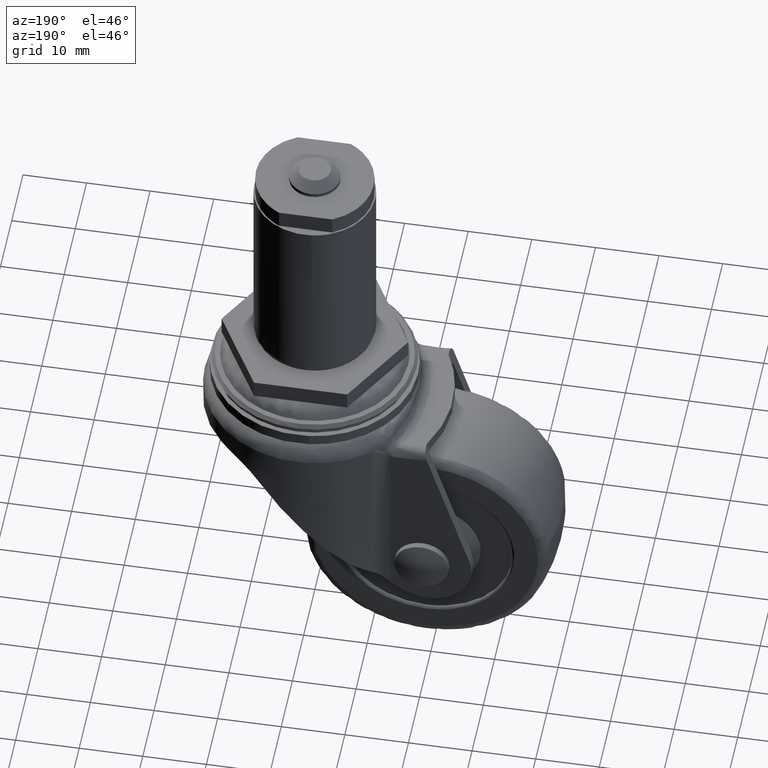
[diagram: clean part render]
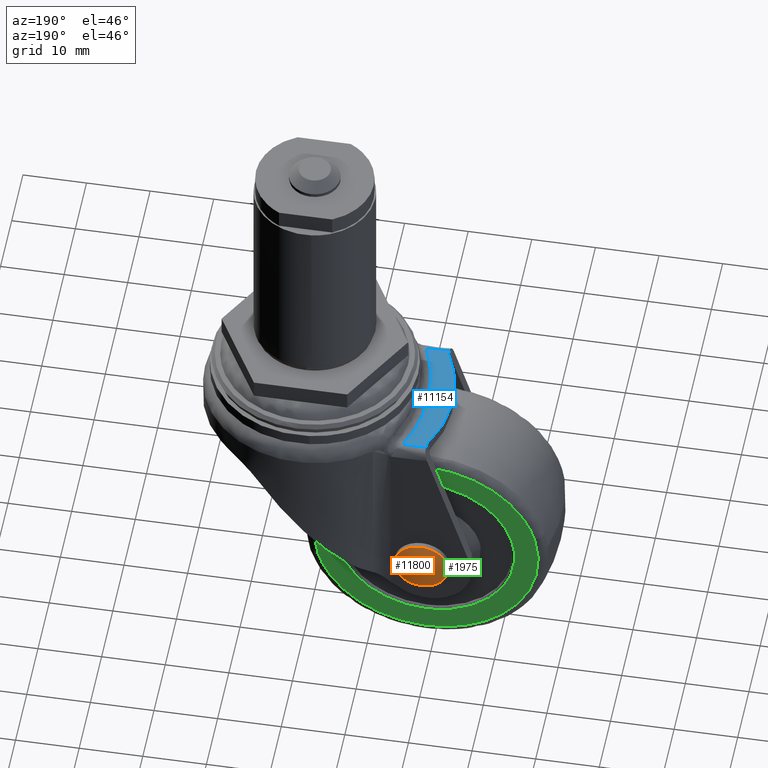
[diagram: same view with three faces highlighted in distinct colors, each labeled with its STEP entity id]
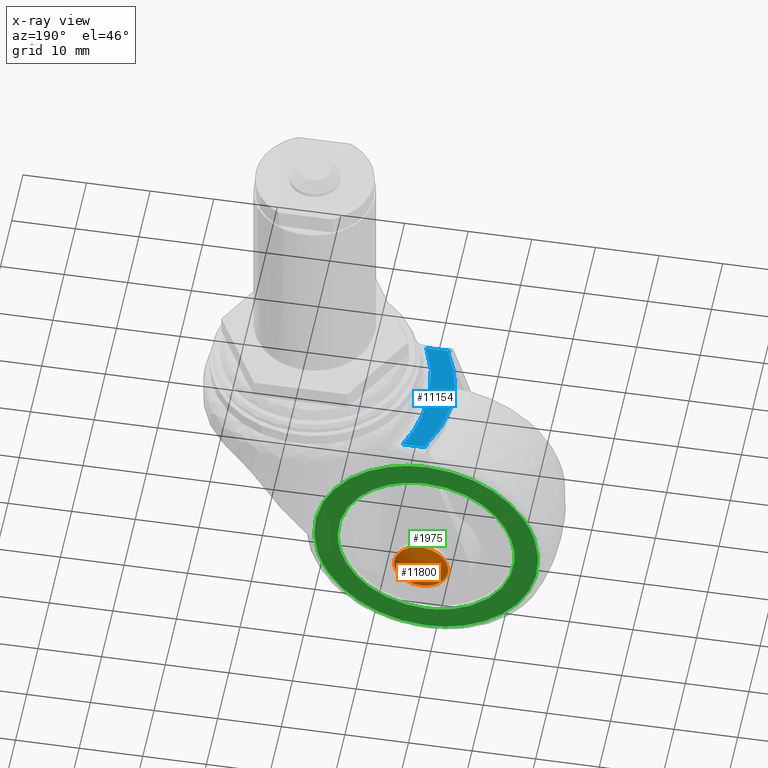
[diagram: x-ray of the same camera — body ghosted, the three highlighted faces saturated]
A machine part, auxiliary view with three faces highlighted in distinct colors.
The next image is the same camera in x-ray (body ghosted, the three faces saturated) — at least one of them is partly hidden behind the body in this view.
Their STEP definitions:

[orange] entity #11800 — the highlighted face is a freeform B-spline surface patch.
#11234=CARTESIAN_POINT('',(-14.779709513381951,12.933474000000000,-35.498349499112209));
#11235=VERTEX_POINT('',#11234);
#11236=CARTESIAN_POINT('',(-19.0,12.933474000000000,-40.249995000000197));
#11237=VERTEX_POINT('',#11236);
#11238=CARTESIAN_POINT('',(-14.779709513381951,12.933474000000000,-35.498349499112209));
#11239=CARTESIAN_POINT('',(-14.750000000000004,12.933473999999995,-35.748292487844793));
#11240=CARTESIAN_POINT('',(-14.750000000000000,12.933474000000000,-35.999995000000197));
#11241=CARTESIAN_POINT('',(-14.750000000000005,12.933474000000002,-40.249995000000204));
#11242=CARTESIAN_POINT('',(-19.0,12.933474000000000,-40.249995000000197));
#11250=(BOUNDED_CURVE()B_SPLINE_CURVE(2,(#11238,#11239,#11240,#11241,#11242),.UNSPECIFIED.,.F.,.U.)B_SPLINE_CURVE_WITH_KNOTS((3,2,3),(0.229562473227576,0.250000000000000,0.500000000000000),.UNSPECIFIED.)CURVE()GEOMETRIC_REPRESENTATION_ITEM()RATIONAL_B_SPLINE_CURVE((0.956026753623260,0.976055947996154,1.0,0.707106781186548,1.0))REPRESENTATION_ITEM(''));
#11251=EDGE_CURVE('',#11235,#11237,#11250,.T.);
#11292=CARTESIAN_POINT('',(-23.242072893281740,12.933474000000000,-36.259451293206340));
#11293=VERTEX_POINT('',#11292);
#11299=CARTESIAN_POINT('',(-19.0,12.933474000000000,-40.249995000000197));
#11300=CARTESIAN_POINT('',(-22.998000784003612,12.933474000000002,-40.249995000000219));
#11301=CARTESIAN_POINT('',(-23.242072893281748,12.933474000000000,-36.259451293206347));
#11309=(BOUNDED_CURVE()B_SPLINE_CURVE(2,(#11299,#11300,#11301),.UNSPECIFIED.,.F.,.U.)B_SPLINE_CURVE_WITH_KNOTS((3,3),(0.500000000000000,0.739332962227081),.UNSPECIFIED.)CURVE()GEOMETRIC_REPRESENTATION_ITEM()RATIONAL_B_SPLINE_CURVE((1.0,0.719603993300607,0.976072041641296))REPRESENTATION_ITEM(''));
#11310=EDGE_CURVE('',#11237,#11293,#11309,.T.);
#11333=CARTESIAN_POINT('',(-19.0,12.933474000000000,-31.749995000000201));
#11334=VERTEX_POINT('',#11333);
#11335=CARTESIAN_POINT('',(-19.0,12.933474000000000,-31.749995000000201));
#11336=CARTESIAN_POINT('',(-15.225258271186082,12.933474000000004,-31.749995000000208));
#11337=CARTESIAN_POINT('',(-14.779709513381951,12.933474000000000,-35.498349499112209));
#11345=(BOUNDED_CURVE()B_SPLINE_CURVE(2,(#11335,#11336,#11337),.UNSPECIFIED.,.F.,.U.)B_SPLINE_CURVE_WITH_KNOTS((3,3),(0.0,0.229562473227576),.UNSPECIFIED.)CURVE()GEOMETRIC_REPRESENTATION_ITEM()RATIONAL_B_SPLINE_CURVE((1.0,0.731050833190393,0.956026753623260))REPRESENTATION_ITEM(''));
#11346=EDGE_CURVE('',#11334,#11235,#11345,.T.);
#11348=CARTESIAN_POINT('',(-23.242072893281748,12.933474000000004,-36.259451293206340));
#11349=CARTESIAN_POINT('',(-23.249999999999996,12.933474000000000,-36.129844244202715));
#11350=CARTESIAN_POINT('',(-23.250000000000000,12.933474000000000,-35.999995000000197));
#11351=CARTESIAN_POINT('',(-23.250000000000000,12.933474000000002,-31.749995000000197));
#11352=CARTESIAN_POINT('',(-19.0,12.933474000000000,-31.749995000000201));
#11360=(BOUNDED_CURVE()B_SPLINE_CURVE(2,(#11348,#11349,#11350,#11351,#11352),.UNSPECIFIED.,.F.,.U.)B_SPLINE_CURVE_WITH_KNOTS((3,2,3),(0.739332962227081,0.750000000000000,1.0),.UNSPECIFIED.)CURVE()GEOMETRIC_REPRESENTATION_ITEM()RATIONAL_B_SPLINE_CURVE((0.976072041641296,0.987502787885941,1.0,0.707106781186548,1.0))REPRESENTATION_ITEM(''));
#11361=EDGE_CURVE('',#11293,#11334,#11360,.T.);
#11770=CARTESIAN_POINT('',(-23.311764594617248,11.619564527839158,-31.688134230007108));
#11771=CARTESIAN_POINT('',(-21.308536887973421,12.725549818831567,-31.382818238652415));
#11772=CARTESIAN_POINT('',(-16.691450116791806,12.725549818831567,-31.382818238652415));
#11773=CARTESIAN_POINT('',(-14.688214343589566,11.619552899551007,-31.688137440088084));
#11774=CARTESIAN_POINT('',(-23.617088360619878,12.725602651942578,-33.691399326827110));
#11775=CARTESIAN_POINT('',(-21.484465801078279,14.000158000000001,-33.515473782067197));
#11776=CARTESIAN_POINT('',(-16.515520213346459,14.000158000000001,-33.515473782067197));
#11777=CARTESIAN_POINT('',(-14.382889329567332,12.725589318507513,-33.691401167227241));
#11778=CARTESIAN_POINT('',(-23.617088360619878,12.725602651942578,-38.308590927982600));
#11779=CARTESIAN_POINT('',(-21.484465801078279,14.000158000000001,-38.484516492160182));
#11780=CARTESIAN_POINT('',(-16.515520213346459,14.000158000000001,-38.484516492160182));
#11781=CARTESIAN_POINT('',(-14.382889329567332,12.725589318507513,-38.308589087582284));
#11782=CARTESIAN_POINT('',(-23.311764531674612,11.619564299828884,-40.311856182967290));
#11783=CARTESIAN_POINT('',(-21.308536851887446,12.725549557388009,-40.617172198791501));
#11784=CARTESIAN_POINT('',(-16.691450152877991,12.725549557388009,-40.617172198791501));
#11785=CARTESIAN_POINT('',(-14.688214406532467,11.619552671541070,-40.311852972886072));
#11793=(BOUNDED_SURFACE()B_SPLINE_SURFACE(2,2,((#11770,#11774,#11778,#11782),(#11771,#11775,#11779,#11783),(#11772,#11776,#11780,#11784),(#11773,#11777,#11781,#11785)),.UNSPECIFIED.,.F.,.F.,.U.)B_SPLINE_SURFACE_WITH_KNOTS((3,1,3),(3,1,3),(0.0,4.786549072823097,9.573125090127471),(0.0,4.786655838428195,9.573312205179553),.UNSPECIFIED.)GEOMETRIC_REPRESENTATION_ITEM()RATIONAL_B_SPLINE_SURFACE(((1.152412543198604,1.076204571811452,1.076204571811452,1.152412560021388),(1.076207971387152,1.0,1.0,1.076207988209936),(1.076207971387152,1.0,1.0,1.076207988209936),(1.152413401143819,1.076205429756667,1.076205429756667,1.152413417966603)))REPRESENTATION_ITEM('')SURFACE());
#11794=ORIENTED_EDGE('',*,*,#11346,.T.);
#11795=ORIENTED_EDGE('',*,*,#11251,.T.);
#11796=ORIENTED_EDGE('',*,*,#11310,.T.);
#11797=ORIENTED_EDGE('',*,*,#11361,.T.);
#11798=EDGE_LOOP('',(#11794,#11795,#11796,#11797));
#11799=FACE_OUTER_BOUND('',#11798,.T.);
#11800=ADVANCED_FACE('',(#11799),#11793,.T.);

[blue] entity #11154 — the highlighted face is a freeform B-spline surface patch.
#7867=CARTESIAN_POINT('',(-19.292232305463649,-10.109999999999999,-11.850971000000021));
#7868=VERTEX_POINT('',#7867);
#7874=CARTESIAN_POINT('',(-19.431056740253052,-9.481630320366211,-11.850971000000101));
#7875=VERTEX_POINT('',#7874);
#7876=CARTESIAN_POINT('',(-19.431056740253052,-9.481630320366211,-11.850971000000101));
#7877=CARTESIAN_POINT('',(-19.381612533223560,-9.579394663803630,-11.850971000000101));
#7878=CARTESIAN_POINT('',(-19.345980952335680,-9.680969222735419,-11.850971000000021));
#7879=CARTESIAN_POINT('',(-19.311267497481030,-9.838498815483337,-11.850971000000021));
#7880=CARTESIAN_POINT('',(-19.302864987933269,-9.891882750238075,-11.850971000000021));
#7881=CARTESIAN_POINT('',(-19.292568292857801,-10.000445942140940,-11.850971000000021));
#7882=CARTESIAN_POINT('',(-19.290736259119360,-10.055287622268271,-11.850971000000021));
#7883=CARTESIAN_POINT('',(-19.292232305463649,-10.109999999999999,-11.850971000000021));
#7884=B_SPLINE_CURVE_WITH_KNOTS('',3,(#7876,#7877,#7878,#7879,#7880,#7881,#7882,#7883),.UNSPECIFIED.,.F.,.U.,(4,2,2,4),(0.0,0.500000000000000,0.750000000000000,1.0),.UNSPECIFIED.);
#7885=EDGE_CURVE('',#7875,#7868,#7884,.T.);
#7964=CARTESIAN_POINT('',(-19.431056620267199,9.481629642205599,-11.850971000000101));
#7965=VERTEX_POINT('',#7964);
#7979=CARTESIAN_POINT('',(-19.292231969452349,10.109999999999999,-11.850971000000021));
#7980=VERTEX_POINT('',#7979);
#7981=CARTESIAN_POINT('',(-19.292231969452349,10.109999999999999,-11.850971000000021));
#7982=CARTESIAN_POINT('',(-19.289241003276299,10.000619849192359,-11.850971000000021));
#7983=CARTESIAN_POINT('',(-19.299369476600649,9.893420179954010,-11.850971000000021));
#7984=CARTESIAN_POINT('',(-19.333795329619090,9.735817269510349,-11.850971000000021));
#7985=CARTESIAN_POINT('',(-19.348510210501431,9.683821394561344,-11.850971000000021));
#7986=CARTESIAN_POINT('',(-19.384833896725709,9.580975431053345,-11.850971000000021));
#7987=CARTESIAN_POINT('',(-19.406348376458659,9.530484408065108,-11.850971000000021));
#7988=CARTESIAN_POINT('',(-19.431056620267199,9.481629642205599,-11.850971000000101));
#7989=B_SPLINE_CURVE_WITH_KNOTS('',3,(#7981,#7982,#7983,#7984,#7985,#7986,#7987,#7988),.UNSPECIFIED.,.F.,.U.,(4,2,2,4),(0.0,0.499999999999996,0.749999999999998,1.0),.UNSPECIFIED.);
#7990=EDGE_CURVE('',#7980,#7965,#7989,.T.);
#8015=CARTESIAN_POINT('',(-19.431056620267210,9.481629642205601,-11.850971000000101));
#8016=CARTESIAN_POINT('',(-24.226380482921854,-0.000000308738951,-11.850971000000099));
#8017=CARTESIAN_POINT('',(-19.431056740253059,-9.481630320366204,-11.850971000000101));
#8025=(BOUNDED_CURVE()B_SPLINE_CURVE(2,(#8015,#8016,#8017),.UNSPECIFIED.,.F.,.U.)CURVE()GEOMETRIC_REPRESENTATION_ITEM()QUASI_UNIFORM_CURVE()RATIONAL_B_SPLINE_CURVE((1.0,0.892365731503941,1.0))REPRESENTATION_ITEM(''));
#8026=EDGE_CURVE('',#7965,#7875,#8025,.T.);
#9682=CARTESIAN_POINT('',(-15.662409885287699,10.500123000000000,-11.850971000000021));
#9683=VERTEX_POINT('',#9682);
#9748=CARTESIAN_POINT('',(-15.662409885287699,-10.500123000000000,-11.850971000000021));
#9749=VERTEX_POINT('',#9748);
#9779=CARTESIAN_POINT('',(-15.662409885287669,-10.500122999999990,-11.850971000000021));
#9780=CARTESIAN_POINT('',(-20.293694679041458,-1.734723E-015,-11.850971000000017));
#9781=CARTESIAN_POINT('',(-15.662409885287669,10.500122999999981,-11.850971000000021));
#9789=(BOUNDED_CURVE()B_SPLINE_CURVE(2,(#9779,#9780,#9781),.UNSPECIFIED.,.F.,.U.)CURVE()GEOMETRIC_REPRESENTATION_ITEM()QUASI_UNIFORM_CURVE()RATIONAL_B_SPLINE_CURVE((1.0,0.914953916740721,1.0))REPRESENTATION_ITEM(''));
#9790=EDGE_CURVE('',#9749,#9683,#9789,.T.);
#9947=CARTESIAN_POINT('',(-19.292231969452349,10.500123000000000,-11.850971000000021));
#9948=VERTEX_POINT('',#9947);
#9964=CARTESIAN_POINT('',(-15.662409885287699,10.500123000000000,-11.850971000000021));
#9965=CARTESIAN_POINT('',(-19.292231969452349,10.500123000000000,-11.850971000000021));
#9966=QUASI_UNIFORM_CURVE('',1,(#9964,#9965),.UNSPECIFIED.,.F.,.U.);
#9967=EDGE_CURVE('',#9683,#9948,#9966,.T.);
#9994=CARTESIAN_POINT('',(-19.292232305463649,-10.500123000000000,-11.850971000000021));
#9995=VERTEX_POINT('',#9994);
#10017=CARTESIAN_POINT('',(-19.292232305463649,-10.500123000000000,-11.850971000000021));
#10018=CARTESIAN_POINT('',(-15.662409885287699,-10.500123000000000,-11.850971000000021));
#10019=QUASI_UNIFORM_CURVE('',1,(#10017,#10018),.UNSPECIFIED.,.F.,.U.);
#10020=EDGE_CURVE('',#9995,#9749,#10019,.T.);
#10997=CARTESIAN_POINT('',(-19.292231969452349,10.109999999999999,-11.850971000000021));
#10998=CARTESIAN_POINT('',(-19.292231969452349,10.500123000000000,-11.850971000000021));
#10999=QUASI_UNIFORM_CURVE('',1,(#10997,#10998),.UNSPECIFIED.,.F.,.U.);
#11000=EDGE_CURVE('',#7980,#9948,#10999,.T.);
#11027=CARTESIAN_POINT('',(-19.292232305463649,-10.500123000000000,-11.850971000000021));
#11028=CARTESIAN_POINT('',(-19.292232305463649,-10.109999999999999,-11.850971000000021));
#11029=QUASI_UNIFORM_CURVE('',1,(#11027,#11028),.UNSPECIFIED.,.F.,.U.);
#11030=EDGE_CURVE('',#9995,#7868,#11029,.T.);
#11139=CARTESIAN_POINT('',(-21.993539933204090,-11.549085246997450,-11.850971000000021));
#11140=CARTESIAN_POINT('',(-15.361214491201920,-11.549085246997450,-11.850971000000021));
#11141=CARTESIAN_POINT('',(-21.993539933204090,11.549085810267940,-11.850971000000021));
#11142=CARTESIAN_POINT('',(-15.361214491201920,11.549085810267940,-11.850971000000021));
#11143=B_SPLINE_SURFACE_WITH_KNOTS('',1,1,((#11139,#11141),(#11140,#11142)),.UNSPECIFIED.,.F.,.F.,.U.,(2,2),(2,2),(0.0,6.632325442002168),(0.0,23.098171057265390),.UNSPECIFIED.);
#11144=ORIENTED_EDGE('',*,*,#11000,.F.);
#11145=ORIENTED_EDGE('',*,*,#7990,.T.);
#11146=ORIENTED_EDGE('',*,*,#8026,.T.);
#11147=ORIENTED_EDGE('',*,*,#7885,.T.);
#11148=ORIENTED_EDGE('',*,*,#11030,.F.);
#11149=ORIENTED_EDGE('',*,*,#10020,.T.);
#11150=ORIENTED_EDGE('',*,*,#9790,.T.);
#11151=ORIENTED_EDGE('',*,*,#9967,.T.);
#11152=EDGE_LOOP('',(#11144,#11145,#11146,#11147,#11148,#11149,#11150,#11151));
#11153=FACE_OUTER_BOUND('',#11152,.T.);
#11154=ADVANCED_FACE('',(#11153),#11143,.T.);

[green] entity #1975 — the highlighted face is a freeform B-spline surface patch.
#1451=CARTESIAN_POINT('',(-1.983238121027201,8.499999999999988,-40.597842754987070));
#1452=VERTEX_POINT('',#1451);
#1466=CARTESIAN_POINT('',(-19.0,8.500000000000000,-18.373016000000302));
#1467=VERTEX_POINT('',#1466);
#1468=CARTESIAN_POINT('',(-1.983238121027201,8.499999999999988,-40.597842754987077));
#1469=CARTESIAN_POINT('',(-1.373021000000099,8.500000000000000,-38.339412273016222));
#1470=CARTESIAN_POINT('',(-1.373021000000099,8.500000000000000,-35.999995000000197));
#1471=CARTESIAN_POINT('',(-1.373021000000099,8.500000000000002,-18.373016000000302));
#1472=CARTESIAN_POINT('',(-19.0,8.500000000000000,-18.373016000000302));
#1480=(BOUNDED_CURVE()B_SPLINE_CURVE(2,(#1468,#1469,#1470,#1471,#1472),.UNSPECIFIED.,.F.,.U.)B_SPLINE_CURVE_WITH_KNOTS((3,2,3),(0.205522207668531,0.250000000000000,0.500000000000000),.UNSPECIFIED.)CURVE()GEOMETRIC_REPRESENTATION_ITEM()RATIONAL_B_SPLINE_CURVE((0.914323587272429,0.947891024953280,1.0,0.707106781186548,1.0))REPRESENTATION_ITEM(''));
#1481=EDGE_CURVE('',#1452,#1467,#1480,.T.);
#1483=CARTESIAN_POINT('',(-36.016761878972801,8.499999999999988,-31.402147245013339));
#1484=VERTEX_POINT('',#1483);
#1485=CARTESIAN_POINT('',(-19.0,8.500000000000000,-18.373016000000302));
#1486=CARTESIAN_POINT('',(-32.496352863983475,8.500000000000000,-18.373016000000302));
#1487=CARTESIAN_POINT('',(-36.016761878972801,8.499999999999988,-31.402147245013342));
#1495=(BOUNDED_CURVE()B_SPLINE_CURVE(2,(#1485,#1486,#1487),.UNSPECIFIED.,.F.,.U.)B_SPLINE_CURVE_WITH_KNOTS((3,3),(0.500000000000000,0.705522207668531),.UNSPECIFIED.)CURVE()GEOMETRIC_REPRESENTATION_ITEM()RATIONAL_B_SPLINE_CURVE((1.0,0.759215756233268,0.914323587272429))REPRESENTATION_ITEM(''));
#1496=EDGE_CURVE('',#1467,#1484,#1495,.T.);
#1598=CARTESIAN_POINT('',(-19.0,8.500000000000000,-53.626974000000097));
#1599=VERTEX_POINT('',#1598);
#1600=CARTESIAN_POINT('',(-36.016761878972801,8.499999999999988,-31.402147245013342));
#1601=CARTESIAN_POINT('',(-36.626978999999906,8.500000000000000,-33.660577726984201));
#1602=CARTESIAN_POINT('',(-36.626978999999899,8.500000000000000,-35.999995000000197));
#1603=CARTESIAN_POINT('',(-36.626978999999899,8.500000000000002,-53.626974000000104));
#1604=CARTESIAN_POINT('',(-19.0,8.500000000000000,-53.626974000000097));
#1612=(BOUNDED_CURVE()B_SPLINE_CURVE(2,(#1600,#1601,#1602,#1603,#1604),.UNSPECIFIED.,.F.,.U.)B_SPLINE_CURVE_WITH_KNOTS((3,2,3),(0.705522207668532,0.750000000000000,1.0),.UNSPECIFIED.)CURVE()GEOMETRIC_REPRESENTATION_ITEM()RATIONAL_B_SPLINE_CURVE((0.914323587272429,0.947891024953280,1.0,0.707106781186548,1.0))REPRESENTATION_ITEM(''));
#1613=EDGE_CURVE('',#1484,#1599,#1612,.T.);
#1615=CARTESIAN_POINT('',(-19.0,8.500000000000000,-53.626974000000097));
#1616=CARTESIAN_POINT('',(-5.503647136016519,8.500000000000000,-53.626974000000111));
#1617=CARTESIAN_POINT('',(-1.983238121027201,8.499999999999988,-40.597842754987077));
#1625=(BOUNDED_CURVE()B_SPLINE_CURVE(2,(#1615,#1616,#1617),.UNSPECIFIED.,.F.,.U.)B_SPLINE_CURVE_WITH_KNOTS((3,3),(0.0,0.205522207668531),.UNSPECIFIED.)CURVE()GEOMETRIC_REPRESENTATION_ITEM()RATIONAL_B_SPLINE_CURVE((1.0,0.759215756233268,0.914323587272429))REPRESENTATION_ITEM(''));
#1626=EDGE_CURVE('',#1599,#1452,#1625,.T.);
#1655=CARTESIAN_POINT('',(-32.866176817240358,8.499999999999998,-36.969288172448159));
#1656=VERTEX_POINT('',#1655);
#1657=CARTESIAN_POINT('',(-19.0,8.500000000000000,-49.900008999999997));
#1658=VERTEX_POINT('',#1657);
#1659=CARTESIAN_POINT('',(-32.866176817240351,8.499999999999998,-36.969288172448159));
#1660=CARTESIAN_POINT('',(-31.962275231893891,8.500000000000000,-49.900009000000004));
#1661=CARTESIAN_POINT('',(-19.0,8.500000000000000,-49.900008999999997));
#1669=(BOUNDED_CURVE()B_SPLINE_CURVE(2,(#1659,#1660,#1661),.UNSPECIFIED.,.F.,.U.)B_SPLINE_CURVE_WITH_KNOTS((3,3),(0.762166313473175,1.0),.UNSPECIFIED.)CURVE()GEOMETRIC_REPRESENTATION_ITEM()RATIONAL_B_SPLINE_CURVE((0.972879876369492,0.721360504043554,1.0))REPRESENTATION_ITEM(''));
#1670=EDGE_CURVE('',#1656,#1658,#1669,.T.);
#1688=CARTESIAN_POINT('',(-5.101083500026209,8.499999999999998,-35.825326869529682));
#1689=VERTEX_POINT('',#1688);
#1703=CARTESIAN_POINT('',(-19.0,8.500000000000000,-49.900008999999997));
#1704=CARTESIAN_POINT('',(-5.099986000000202,8.500000000000002,-49.900009000000011));
#1705=CARTESIAN_POINT('',(-5.099986000000200,8.500000000000000,-35.999995000000197));
#1706=CARTESIAN_POINT('',(-5.099986000000199,8.499999999999998,-35.912657486612019));
#1707=CARTESIAN_POINT('',(-5.101083500026209,8.499999999999998,-35.825326869529675));
#1715=(BOUNDED_CURVE()B_SPLINE_CURVE(2,(#1703,#1704,#1705,#1706,#1707),.UNSPECIFIED.,.F.,.U.)B_SPLINE_CURVE_WITH_KNOTS((3,2,3),(0.0,0.250000000000000,0.252215704086753),.UNSPECIFIED.)CURVE()GEOMETRIC_REPRESENTATION_ITEM()RATIONAL_B_SPLINE_CURVE((1.0,0.707106781186548,1.0,0.997404141192371,0.994854295624492))REPRESENTATION_ITEM(''));
#1716=EDGE_CURVE('',#1658,#1689,#1715,.T.);
#1750=CARTESIAN_POINT('',(-19.0,8.500000000000000,-22.099981000000401));
#1751=VERTEX_POINT('',#1750);
#1752=CARTESIAN_POINT('',(-19.0,8.500000000000000,-22.099981000000401));
#1753=CARTESIAN_POINT('',(-32.900013999999800,8.500000000000002,-22.099981000000412));
#1754=CARTESIAN_POINT('',(-32.900013999999800,8.500000000000000,-35.999995000000197));
#1755=CARTESIAN_POINT('',(-32.900013999999800,8.500000000000000,-36.485232199722539));
#1756=CARTESIAN_POINT('',(-32.866176817240358,8.499999999999998,-36.969288172448159));
#1764=(BOUNDED_CURVE()B_SPLINE_CURVE(2,(#1752,#1753,#1754,#1755,#1756),.UNSPECIFIED.,.F.,.U.)B_SPLINE_CURVE_WITH_KNOTS((3,2,3),(0.500000000000000,0.750000000000000,0.762166313473176),.UNSPECIFIED.)CURVE()GEOMETRIC_REPRESENTATION_ITEM()RATIONAL_B_SPLINE_CURVE((1.0,0.707106781186548,1.0,0.985746277142993,0.972879876369490))REPRESENTATION_ITEM(''));
#1765=EDGE_CURVE('',#1751,#1656,#1764,.T.);
#1767=CARTESIAN_POINT('',(-5.101083500026209,8.499999999999998,-35.825326869529675));
#1768=CARTESIAN_POINT('',(-5.273570349783515,8.500000000000002,-22.099981000000415));
#1769=CARTESIAN_POINT('',(-19.0,8.500000000000000,-22.099981000000401));
#1777=(BOUNDED_CURVE()B_SPLINE_CURVE(2,(#1767,#1768,#1769),.UNSPECIFIED.,.F.,.U.)B_SPLINE_CURVE_WITH_KNOTS((3,3),(0.252215704086753,0.500000000000000),.UNSPECIFIED.)CURVE()GEOMETRIC_REPRESENTATION_ITEM()RATIONAL_B_SPLINE_CURVE((0.994854295624492,0.709702639994176,1.0))REPRESENTATION_ITEM(''));
#1778=EDGE_CURVE('',#1689,#1751,#1777,.T.);
#1958=CARTESIAN_POINT('',(-38.384315137529839,8.500000000000000,-16.612081323120162));
#1959=CARTESIAN_POINT('',(-38.384315137529839,8.500000000000000,-55.387907416100461));
#1960=CARTESIAN_POINT('',(0.384315767879450,8.500000000000000,-16.612081323120162));
#1961=CARTESIAN_POINT('',(0.384315767879450,8.500000000000000,-55.387907416100461));
#1962=B_SPLINE_SURFACE_WITH_KNOTS('',1,1,((#1958,#1960),(#1959,#1961)),.UNSPECIFIED.,.F.,.F.,.U.,(2,2),(2,2),(0.0,38.775826092980303),(0.0,38.768630905409289),.UNSPECIFIED.);
#1963=ORIENTED_EDGE('',*,*,#1613,.F.);
#1964=ORIENTED_EDGE('',*,*,#1496,.F.);
#1965=ORIENTED_EDGE('',*,*,#1481,.F.);
#1966=ORIENTED_EDGE('',*,*,#1626,.F.);
#1967=EDGE_LOOP('',(#1963,#1964,#1965,#1966));
#1968=FACE_OUTER_BOUND('',#1967,.T.);
#1969=ORIENTED_EDGE('',*,*,#1716,.T.);
#1970=ORIENTED_EDGE('',*,*,#1778,.T.);
#1971=ORIENTED_EDGE('',*,*,#1765,.T.);
#1972=ORIENTED_EDGE('',*,*,#1670,.T.);
#1973=EDGE_LOOP('',(#1969,#1970,#1971,#1972));
#1974=FACE_BOUND('',#1973,.T.);
#1975=ADVANCED_FACE('',(#1968,#1974),#1962,.F.);